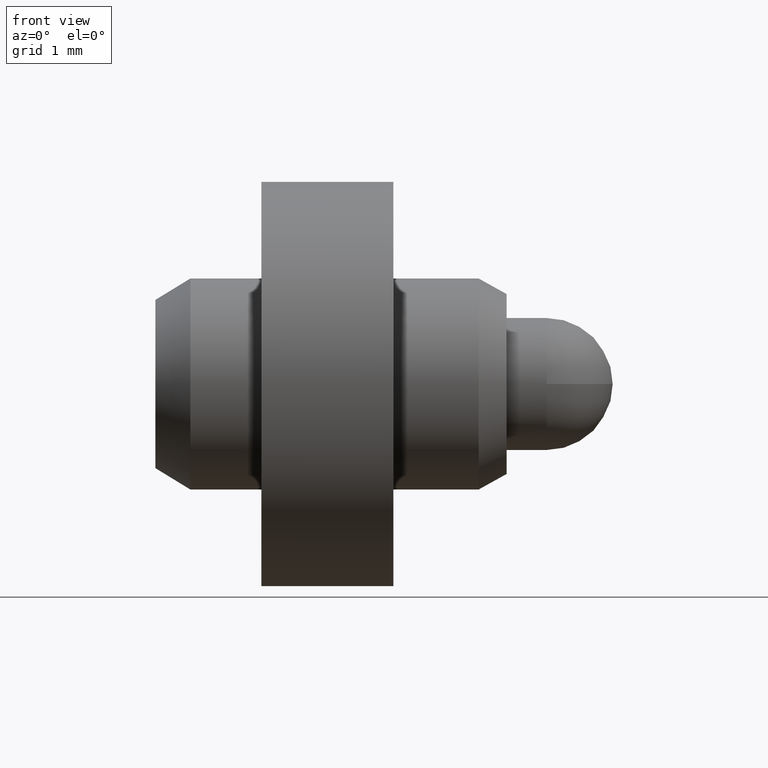
[diagram: clean part render]
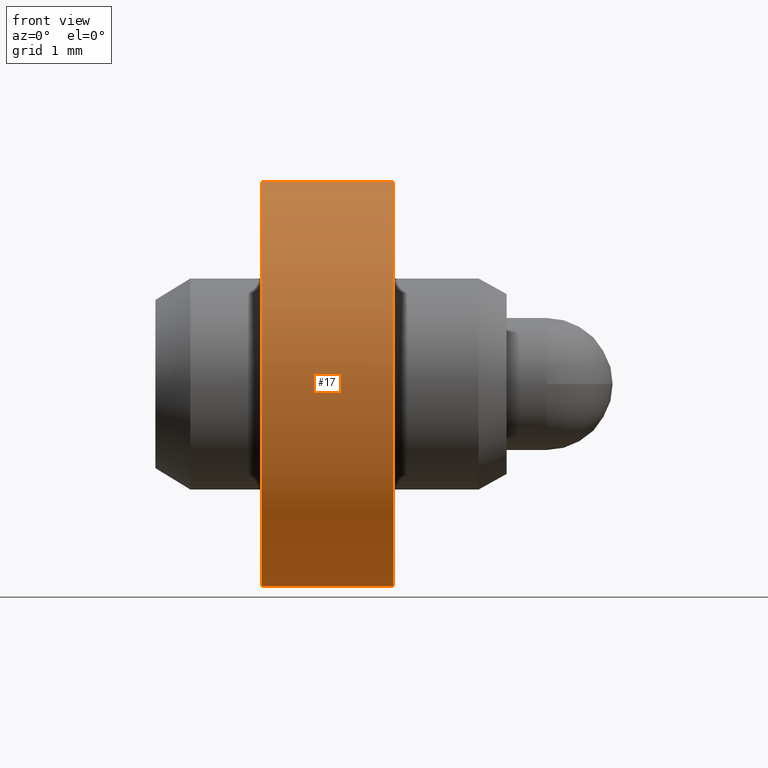
[diagram: same view with one face highlighted and labeled with its STEP entity id]
A machine part, front view. The second image highlights one B-rep face of the part: STEP entity #17.
In plain terms, the highlighted cylindrical surface (partial cylindrical patch) has radius 1.945 mm, axis along (-1, -0, -0).
Its self-contained STEP definition (entity closure, byte-faithful):
#2 = VECTOR ( 'NONE', #39, 1000.000000000000000 ) ;
#14 = AXIS2_PLACEMENT_3D ( 'NONE', #42, #355, #357 ) ;
#17 = ADVANCED_FACE ( 'NONE', ( #362 ), #346, .T. ) ;
#39 = DIRECTION ( 'NONE',  ( -1.000000000000000000, -0.0000000000000000000, -0.0000000000000000000 ) ) ;
#42 = CARTESIAN_POINT ( 'NONE',  ( -1.340499362052783000, 0.0000000000000000000, 0.0000000000000000000 ) ) ;
#76 = CARTESIAN_POINT ( 'NONE',  ( -0.07049936205278306600, 2.381938024341601800E-016, -1.944999999999999800 ) ) ;
#92 = ORIENTED_EDGE ( 'NONE', *, *, #162, .T. ) ;
#125 = VERTEX_POINT ( 'NONE', #384 ) ;
#155 = CARTESIAN_POINT ( 'NONE',  ( -2.360499362052783200, 0.0000000000000000000, 1.944999999999999800 ) ) ;
#162 = EDGE_CURVE ( 'NONE', #125, #332, #288, .T. ) ;
#163 = CARTESIAN_POINT ( 'NONE',  ( -1.340499362052783000, 0.0000000000000000000, 1.944999999999999800 ) ) ;
#180 = AXIS2_PLACEMENT_3D ( 'NONE', #197, #396, #359 ) ;
#195 = VERTEX_POINT ( 'NONE', #444 ) ;
#197 = CARTESIAN_POINT ( 'NONE',  ( -0.07049936205278306600, 0.0000000000000000000, 0.0000000000000000000 ) ) ;
#205 = ORIENTED_EDGE ( 'NONE', *, *, #290, .T. ) ;
#211 = ORIENTED_EDGE ( 'NONE', *, *, #212, .F. ) ;
#212 = EDGE_CURVE ( 'NONE', #276, #195, #279, .T. ) ;
#276 = VERTEX_POINT ( 'NONE', #76 ) ;
#279 = LINE ( 'NONE', #441, #301 ) ;
#288 = LINE ( 'NONE', #155, #2 ) ;
#290 = EDGE_CURVE ( 'NONE', #276, #125, #360, .T. ) ;
#301 = VECTOR ( 'NONE', #309, 1000.000000000000000 ) ;
#307 = ORIENTED_EDGE ( 'NONE', *, *, #320, .F. ) ;
#309 = DIRECTION ( 'NONE',  ( -1.000000000000000000, -0.0000000000000000000, -0.0000000000000000000 ) ) ;
#320 = EDGE_CURVE ( 'NONE', #195, #332, #342, .T. ) ;
#332 = VERTEX_POINT ( 'NONE', #163 ) ;
#336 = CARTESIAN_POINT ( 'NONE',  ( -2.360499362052783200, 0.0000000000000000000, 0.0000000000000000000 ) ) ;
#342 = CIRCLE ( 'NONE', #14, 1.944999999999999800 ) ;
#346 = CYLINDRICAL_SURFACE ( 'NONE', #409, 1.944999999999999800 ) ;
#355 = DIRECTION ( 'NONE',  ( -1.000000000000000000, -0.0000000000000000000, -0.0000000000000000000 ) ) ;
#357 = DIRECTION ( 'NONE',  ( 0.0000000000000000000, 0.0000000000000000000, 1.000000000000000000 ) ) ;
#359 = DIRECTION ( 'NONE',  ( 0.0000000000000000000, 0.0000000000000000000, 1.000000000000000000 ) ) ;
#360 = CIRCLE ( 'NONE', #180, 1.944999999999999800 ) ;
#362 = FACE_OUTER_BOUND ( 'NONE', #378, .T. ) ;
#378 = EDGE_LOOP ( 'NONE', ( #211, #205, #92, #307 ) ) ;
#384 = CARTESIAN_POINT ( 'NONE',  ( -0.07049936205278306600, 0.0000000000000000000, 1.944999999999999800 ) ) ;
#396 = DIRECTION ( 'NONE',  ( -1.000000000000000000, -0.0000000000000000000, -0.0000000000000000000 ) ) ;
#409 = AXIS2_PLACEMENT_3D ( 'NONE', #336, #469, #422 ) ;
#422 = DIRECTION ( 'NONE',  ( 0.0000000000000000000, 0.0000000000000000000, 1.000000000000000000 ) ) ;
#441 = CARTESIAN_POINT ( 'NONE',  ( -2.360499362052783200, 2.381938024341601800E-016, -1.944999999999999800 ) ) ;
#444 = CARTESIAN_POINT ( 'NONE',  ( -1.340499362052783000, 2.381938024341601800E-016, -1.944999999999999800 ) ) ;
#469 = DIRECTION ( 'NONE',  ( -1.000000000000000000, -0.0000000000000000000, -0.0000000000000000000 ) ) ;